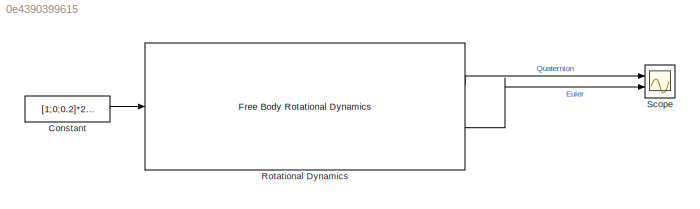
MODEL slx_0e4390399615
KIND model
BLOCK [Constant] Constant
  Value = [1;0;0.2]*2*pi
BLOCK [Reference] Rotational Dynamics  REF=MultiRotorSimLibrary/Dynamics/Free Body Rotational Dynamics
  Ports = [1, 2]
  SourceBlock = MultiRotorSimLibrary/Dynamics/Free Body Rotational Dynamics
  SourceType = Free Body Rotational Dynamics
  initValueRequestEuler = [0;0;0]
  initValueRequestQuat = [0.80178;0.53452;0.26726;0]
  initialValueUsedQuat = [0.80178;0.53452;0.26726;0]
  specInitValueInQuaternion_bool = Quaternion
BLOCK [Scope] Scope
  Floating = off
  LimitDataPoints = off
  NumInputPorts = 2
  Ports = [2]
  ShowLegends = off
  TimeRange = 10
  YMax = 1~4
  YMin = -1~-4
LINE Constant:1 -> Rotational Dynamics:1
LINE Rotational Dynamics:1 -> Scope:1
LINE Rotational Dynamics:2 -> Scope:2
